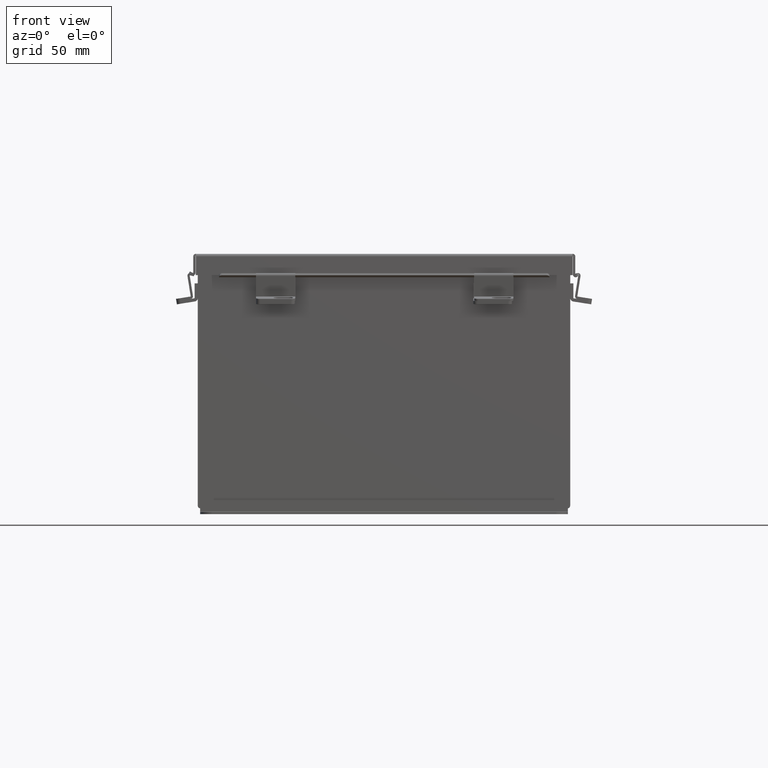
[diagram: clean part render]
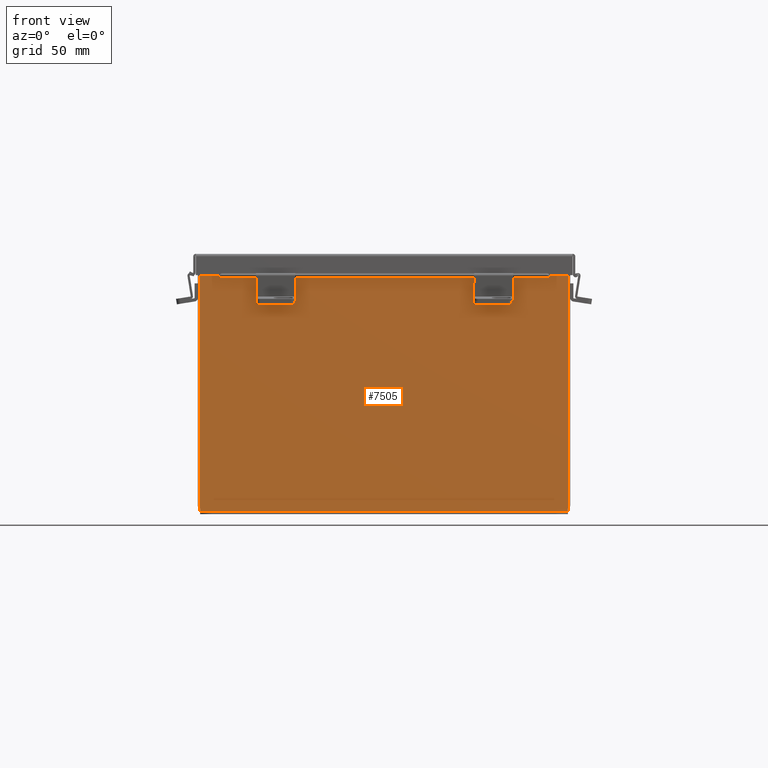
[diagram: same view with one face highlighted and labeled with its STEP entity id]
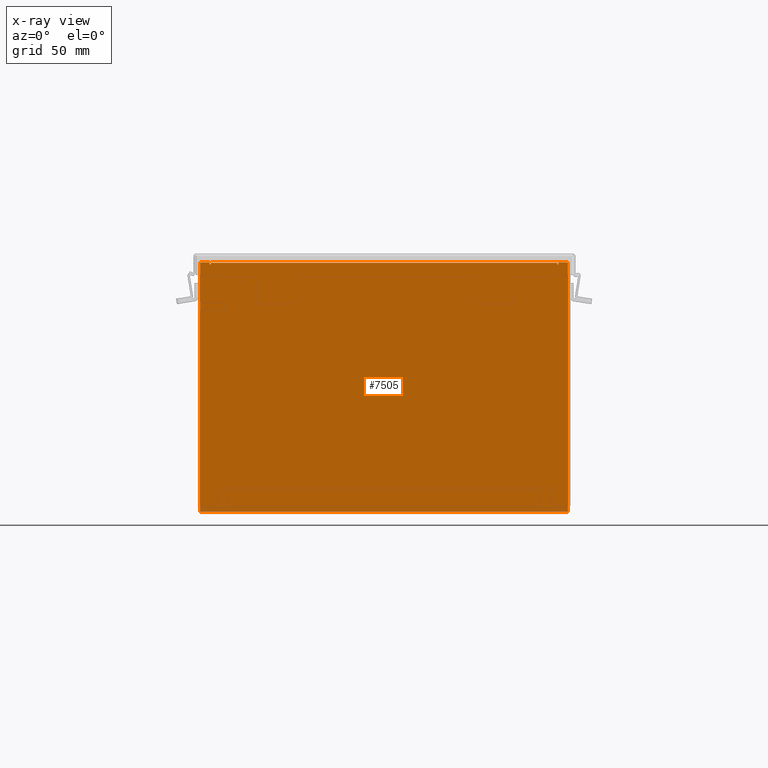
[diagram: x-ray of the same camera — body ghosted, the highlighted face saturated]
A machine part, front view. The second image highlights one B-rep face of the part: STEP entity #7505.
The next image is the same camera in x-ray: the body ghosted, the highlighted face saturated — about 0% of this face is hidden behind the body in this view.
In plain terms, the highlighted planar face has unit normal (-0, 1, -0).
Its self-contained STEP definition (entity closure, byte-faithful):
#62 = LINE ( 'NONE', #9852, #8955 ) ;
#123 = EDGE_CURVE ( 'NONE', #7382, #9063, #7613, .T. ) ;
#130 = CARTESIAN_POINT ( 'NONE',  ( 5.600975000000007100, 8.741913579725642300E-015, 3.874949999999999200 ) ) ;
#303 = CARTESIAN_POINT ( 'NONE',  ( -5.925299999999992900, 0.0000000000000000000, 3.925300000000000500 ) ) ;
#307 = FACE_OUTER_BOUND ( 'NONE', #2056, .T. ) ;
#434 = ORIENTED_EDGE ( 'NONE', *, *, #1777, .T. ) ;
#690 = EDGE_CURVE ( 'NONE', #7382, #1716, #62, .T. ) ;
#960 = VECTOR ( 'NONE', #5264, 39.37007874015748100 ) ;
#992 = DIRECTION ( 'NONE',  ( 1.000000000000000000, 4.910036603141682400E-031, 0.0000000000000000000 ) ) ;
#1025 = CARTESIAN_POINT ( 'NONE',  ( 5.925300000000008000, 8.741913579725642300E-015, -4.099299999999999500 ) ) ;
#1059 = VERTEX_POINT ( 'NONE', #9492 ) ;
#1200 = LINE ( 'NONE', #6120, #5257 ) ;
#1312 = ORIENTED_EDGE ( 'NONE', *, *, #2132, .F. ) ;
#1332 = CARTESIAN_POINT ( 'NONE',  ( -5.582299999999991200, 2.185478394931410600E-015, 3.912299999999999200 ) ) ;
#1490 = CARTESIAN_POINT ( 'NONE',  ( -5.925299999999992900, 0.0000000000000000000, 3.925300000000000500 ) ) ;
#1515 = VECTOR ( 'NONE', #1973, 39.37007874015748100 ) ;
#1716 = VERTEX_POINT ( 'NONE', #4027 ) ;
#1777 = EDGE_CURVE ( 'NONE', #3515, #5719, #6256, .T. ) ;
#1856 = DIRECTION ( 'NONE',  ( 0.0000000000000000000, 0.0000000000000000000, 1.000000000000000000 ) ) ;
#1922 = CIRCLE ( 'NONE', #4168, 0.01867500000000003900 ) ;
#1973 = DIRECTION ( 'NONE',  ( 0.0000000000000000000, 0.0000000000000000000, -1.000000000000000000 ) ) ;
#2055 = CARTESIAN_POINT ( 'NONE',  ( 5.619650000000007100, 8.741913579725642300E-015, 3.874949999999997900 ) ) ;
#2056 = EDGE_LOOP ( 'NONE', ( #7097, #6036, #2776, #3645, #4546, #7394, #1312, #4623, #4844, #4212, #434, #9325 ) ) ;
#2123 = DIRECTION ( 'NONE',  ( 0.0000000000000000000, 0.0000000000000000000, -1.000000000000000000 ) ) ;
#2132 = EDGE_CURVE ( 'NONE', #8795, #8289, #8370, .T. ) ;
#2213 = PLANE ( 'NONE',  #2785 ) ;
#2338 = VECTOR ( 'NONE', #2123, 39.37007874015748100 ) ;
#2471 = EDGE_CURVE ( 'NONE', #3915, #3963, #6641, .T. ) ;
#2626 = VERTEX_POINT ( 'NONE', #5017 ) ;
#2729 = CARTESIAN_POINT ( 'NONE',  ( 5.619650000000008900, 8.741913579725642300E-015, 3.925299999999999100 ) ) ;
#2776 = ORIENTED_EDGE ( 'NONE', *, *, #123, .F. ) ;
#2785 = AXIS2_PLACEMENT_3D ( 'NONE', #2976, #8324, #3761 ) ;
#2801 = CARTESIAN_POINT ( 'NONE',  ( -5.600974999999991200, 0.0000000000000000000, 3.874950000000000100 ) ) ;
#2976 = CARTESIAN_POINT ( 'NONE',  ( 0.0000000000000000000, 0.0000000000000000000, 0.0000000000000000000 ) ) ;
#3062 = CARTESIAN_POINT ( 'NONE',  ( -5.619649999999991200, 0.0000000000000000000, 3.874950000000000100 ) ) ;
#3129 = CARTESIAN_POINT ( 'NONE',  ( 5.925300000000008000, 8.741913579725642300E-015, 3.925299999999998200 ) ) ;
#3150 = VECTOR ( 'NONE', #1856, 39.37007874015748100 ) ;
#3180 = CARTESIAN_POINT ( 'NONE',  ( 5.925300000000008000, 8.741913579725642300E-015, 3.925299999999998200 ) ) ;
#3203 = LINE ( 'NONE', #9850, #3688 ) ;
#3515 = VERTEX_POINT ( 'NONE', #5550 ) ;
#3600 = DIRECTION ( 'NONE',  ( 0.0000000000000000000, 0.0000000000000000000, -1.000000000000000000 ) ) ;
#3645 = ORIENTED_EDGE ( 'NONE', *, *, #690, .T. ) ;
#3688 = VECTOR ( 'NONE', #5234, 39.37007874015748100 ) ;
#3761 = DIRECTION ( 'NONE',  ( 0.0000000000000000000, 0.0000000000000000000, -1.000000000000000000 ) ) ;
#3878 = DIRECTION ( 'NONE',  ( 0.0000000000000000000, 0.0000000000000000000, 1.000000000000000000 ) ) ;
#3915 = VERTEX_POINT ( 'NONE', #3180 ) ;
#3963 = VERTEX_POINT ( 'NONE', #1025 ) ;
#4027 = CARTESIAN_POINT ( 'NONE',  ( 5.582300000000008000, 8.741913579725642300E-015, 3.912300000000000100 ) ) ;
#4080 = EDGE_CURVE ( 'NONE', #4611, #1059, #6138, .T. ) ;
#4168 = AXIS2_PLACEMENT_3D ( 'NONE', #2801, #8141, #3600 ) ;
#4212 = ORIENTED_EDGE ( 'NONE', *, *, #9041, .F. ) ;
#4536 = DIRECTION ( 'NONE',  ( 1.000000000000000000, 4.910036603141682400E-031, -0.0000000000000000000 ) ) ;
#4546 = ORIENTED_EDGE ( 'NONE', *, *, #9543, .F. ) ;
#4579 = EDGE_CURVE ( 'NONE', #8289, #2626, #8897, .T. ) ;
#4585 = AXIS2_PLACEMENT_3D ( 'NONE', #130, #8046, #7569 ) ;
#4611 = VERTEX_POINT ( 'NONE', #3062 ) ;
#4623 = ORIENTED_EDGE ( 'NONE', *, *, #5214, .T. ) ;
#4844 = ORIENTED_EDGE ( 'NONE', *, *, #2471, .T. ) ;
#5017 = CARTESIAN_POINT ( 'NONE',  ( 5.582300000000008000, 8.741913579725642300E-015, 3.874949999999999200 ) ) ;
#5181 = VECTOR ( 'NONE', #3878, 39.37007874015748100 ) ;
#5214 = EDGE_CURVE ( 'NONE', #8795, #3915, #6902, .T. ) ;
#5234 = DIRECTION ( 'NONE',  ( 1.000000000000000000, 4.910036603141682400E-031, 0.0000000000000000000 ) ) ;
#5257 = VECTOR ( 'NONE', #4536, 39.37007874015748100 ) ;
#5264 = DIRECTION ( 'NONE',  ( 0.0000000000000000000, 0.0000000000000000000, 1.000000000000000000 ) ) ;
#5488 = CARTESIAN_POINT ( 'NONE',  ( -5.619649999999991200, 0.0000000000000000000, 4.370956789862821100E-015 ) ) ;
#5550 = CARTESIAN_POINT ( 'NONE',  ( -5.925299999999991100, 0.0000000000000000000, -4.099299999999995100 ) ) ;
#5719 = VERTEX_POINT ( 'NONE', #6209 ) ;
#6036 = ORIENTED_EDGE ( 'NONE', *, *, #8288, .F. ) ;
#6120 = CARTESIAN_POINT ( 'NONE',  ( -5.925299999999992900, 0.0000000000000000000, -4.099299999999995100 ) ) ;
#6138 = LINE ( 'NONE', #5488, #5181 ) ;
#6156 = CARTESIAN_POINT ( 'NONE',  ( -5.582299999999991200, 0.0000000000000000000, 3.874950000000000100 ) ) ;
#6209 = CARTESIAN_POINT ( 'NONE',  ( -5.925299999999992900, 0.0000000000000000000, 3.925300000000000500 ) ) ;
#6256 = LINE ( 'NONE', #303, #3150 ) ;
#6641 = LINE ( 'NONE', #3129, #2338 ) ;
#6740 = VECTOR ( 'NONE', #9391, 39.37007874015748100 ) ;
#6749 = CARTESIAN_POINT ( 'NONE',  ( 5.619649999999923700, 0.0000000000000000000, -1.218404205174261500E-013 ) ) ;
#6902 = LINE ( 'NONE', #1490, #7125 ) ;
#6951 = CARTESIAN_POINT ( 'NONE',  ( -5.582299999999991200, 0.0000000000000000000, 4.370956789862821100E-015 ) ) ;
#7000 = LINE ( 'NONE', #9103, #960 ) ;
#7097 = ORIENTED_EDGE ( 'NONE', *, *, #4080, .F. ) ;
#7125 = VECTOR ( 'NONE', #992, 39.37007874015748100 ) ;
#7382 = VERTEX_POINT ( 'NONE', #1332 ) ;
#7394 = ORIENTED_EDGE ( 'NONE', *, *, #4579, .F. ) ;
#7505 = ADVANCED_FACE ( 'NONE', ( #307 ), #2213, .F. ) ;
#7569 = DIRECTION ( 'NONE',  ( 0.0000000000000000000, 0.0000000000000000000, -1.000000000000000000 ) ) ;
#7613 = LINE ( 'NONE', #6951, #1515 ) ;
#8014 = DIRECTION ( 'NONE',  ( 1.000000000000000000, 4.910036603141682400E-031, -0.0000000000000000000 ) ) ;
#8046 = DIRECTION ( 'NONE',  ( 4.910036603141682400E-031, 1.000000000000000000, -0.0000000000000000000 ) ) ;
#8141 = DIRECTION ( 'NONE',  ( 4.910036603141682400E-031, 1.000000000000000000, -0.0000000000000000000 ) ) ;
#8288 = EDGE_CURVE ( 'NONE', #9063, #4611, #1922, .T. ) ;
#8289 = VERTEX_POINT ( 'NONE', #2055 ) ;
#8324 = DIRECTION ( 'NONE',  ( -4.910036603141682400E-031, -1.000000000000000000, -0.0000000000000000000 ) ) ;
#8370 = LINE ( 'NONE', #6749, #6740 ) ;
#8795 = VERTEX_POINT ( 'NONE', #2729 ) ;
#8897 = CIRCLE ( 'NONE', #4585, 0.01867500000000003900 ) ;
#8955 = VECTOR ( 'NONE', #8014, 39.37007874015748100 ) ;
#9041 = EDGE_CURVE ( 'NONE', #3515, #3963, #1200, .T. ) ;
#9063 = VERTEX_POINT ( 'NONE', #6156 ) ;
#9103 = CARTESIAN_POINT ( 'NONE',  ( 5.582300000000008000, 0.0000000000000000000, 0.0000000000000000000 ) ) ;
#9325 = ORIENTED_EDGE ( 'NONE', *, *, #9484, .T. ) ;
#9391 = DIRECTION ( 'NONE',  ( -2.170286390199955400E-014, -7.888609052210118100E-031, -1.000000000000000000 ) ) ;
#9484 = EDGE_CURVE ( 'NONE', #5719, #1059, #3203, .T. ) ;
#9492 = CARTESIAN_POINT ( 'NONE',  ( -5.619649999999991200, 0.0000000000000000000, 3.925300000000001300 ) ) ;
#9543 = EDGE_CURVE ( 'NONE', #2626, #1716, #7000, .T. ) ;
#9850 = CARTESIAN_POINT ( 'NONE',  ( -5.925299999999992900, 0.0000000000000000000, 3.925300000000000500 ) ) ;
#9852 = CARTESIAN_POINT ( 'NONE',  ( -5.582299999999992900, 2.185478394931410600E-015, 3.912299999999999200 ) ) ;